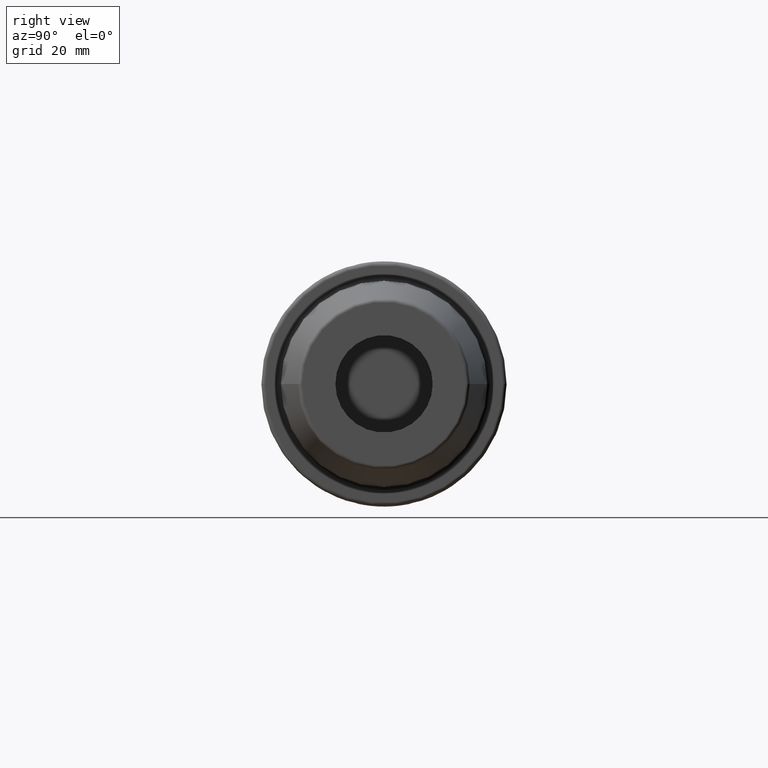
[diagram: clean part render]
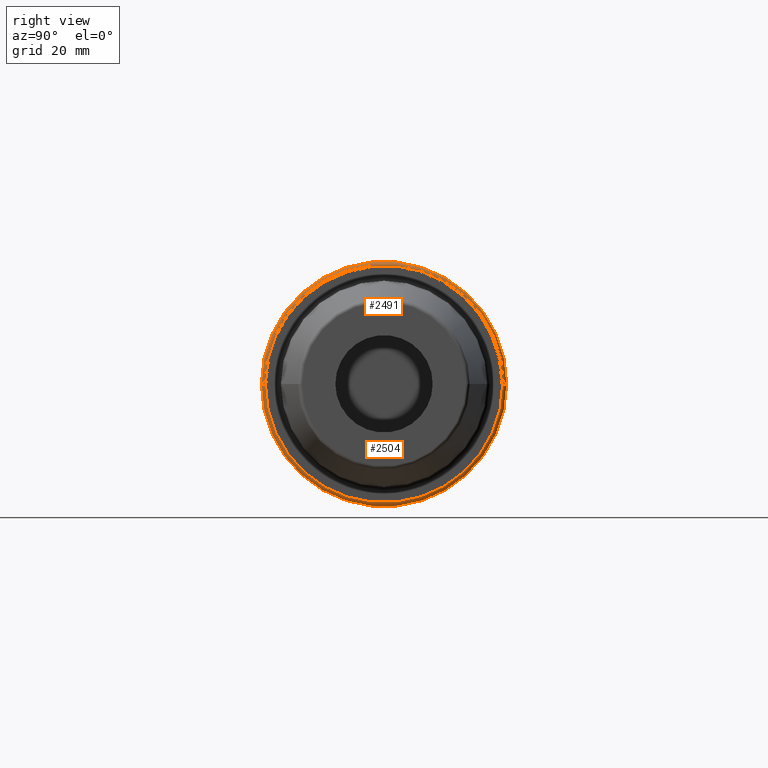
[diagram: same view with one multi-face feature highlighted, each face labeled with its STEP entity id]
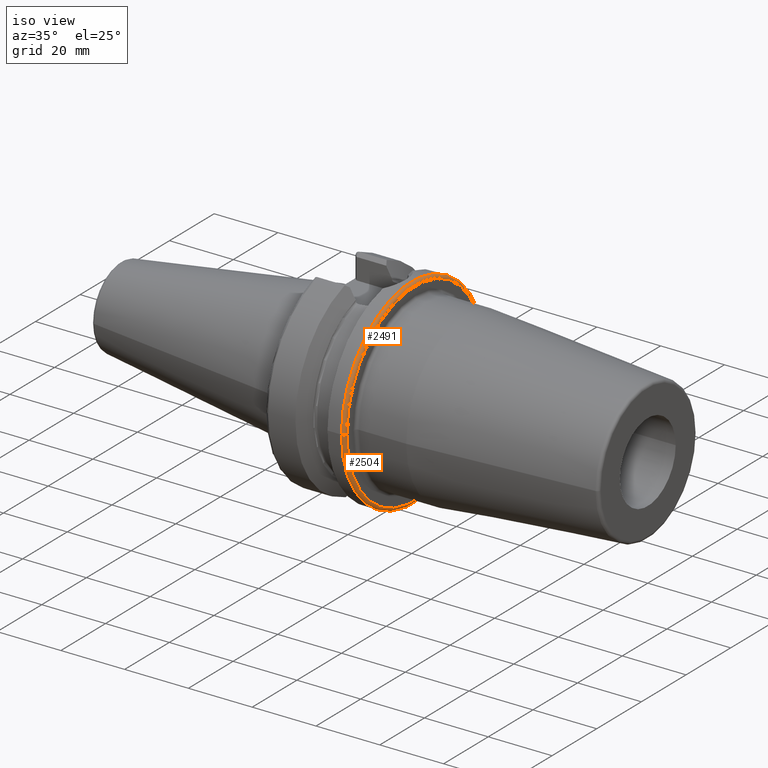
[diagram: same view with one multi-face feature highlighted, each face labeled with its STEP entity id]
A machine part, right view. The highlighted faces form ONE feature: a constant-radius fillet chain: 2 tangent blend faces with common blend radius 1 mm. The faces share edges in the B-rep.
A second angle (iso view) of the same feature is appended — it is thin or edge-on in the first view.
Their STEP definitions:
[1] entity #2504 (Torus):
#255=CARTESIAN_POINT('',(2.6E1,0.E0,0.E0));
#256=DIRECTION('',(-1.E0,0.E0,0.E0));
#257=DIRECTION('',(0.E0,1.E0,0.E0));
#258=AXIS2_PLACEMENT_3D('',#255,#256,#257);
#821=CARTESIAN_POINT('',(2.6E1,3.04875E1,0.E0));
#822=DIRECTION('',(0.E0,0.E0,1.E0));
#823=DIRECTION('',(1.E0,0.E0,0.E0));
#824=AXIS2_PLACEMENT_3D('',#821,#822,#823);
#826=CARTESIAN_POINT('',(2.6E1,-3.04875E1,0.E0));
#827=DIRECTION('',(0.E0,0.E0,-1.E0));
#828=DIRECTION('',(1.E0,0.E0,0.E0));
#829=AXIS2_PLACEMENT_3D('',#826,#827,#828);
#831=CARTESIAN_POINT('',(2.7E1,0.E0,0.E0));
#832=DIRECTION('',(-1.E0,0.E0,0.E0));
#833=DIRECTION('',(0.E0,1.E0,0.E0));
#834=AXIS2_PLACEMENT_3D('',#831,#832,#833);
#1234=CARTESIAN_POINT('',(2.6E1,3.14875E1,0.E0));
#1235=VERTEX_POINT('',#1234);
#1236=CARTESIAN_POINT('',(2.6E1,-3.14875E1,0.E0));
#1237=VERTEX_POINT('',#1236);
#1304=CARTESIAN_POINT('',(2.7E1,3.04875E1,0.E0));
#1305=VERTEX_POINT('',#1304);
#1306=CARTESIAN_POINT('',(2.7E1,-3.04875E1,0.E0));
#1307=VERTEX_POINT('',#1306);
#2492=CARTESIAN_POINT('',(2.6E1,0.E0,0.E0));
#2493=DIRECTION('',(1.E0,0.E0,0.E0));
#2494=DIRECTION('',(0.E0,-1.E0,0.E0));
#2495=AXIS2_PLACEMENT_3D('',#2492,#2493,#2494);
#2496=TOROIDAL_SURFACE('',#2495,3.04875E1,1.E0);
#2497=ORIENTED_EDGE('',*,*,#2482,.T.);
#2498=ORIENTED_EDGE('',*,*,#1759,.T.);
#2499=ORIENTED_EDGE('',*,*,#2486,.F.);
#2501=ORIENTED_EDGE('',*,*,#2500,.F.);
#2502=EDGE_LOOP('',(#2497,#2498,#2499,#2501));
#2503=FACE_OUTER_BOUND('',#2502,.F.);
#2504=ADVANCED_FACE('',(#2503),#2496,.T.);
#259=CIRCLE('',#258,3.14875E1);
#825=CIRCLE('',#824,1.E0);
#830=CIRCLE('',#829,1.E0);
#835=CIRCLE('',#834,3.04875E1);
#1759=EDGE_CURVE('',#1235,#1237,#259,.T.);
#2482=EDGE_CURVE('',#1305,#1235,#825,.T.);
#2486=EDGE_CURVE('',#1307,#1237,#830,.T.);
#2500=EDGE_CURVE('',#1305,#1307,#835,.T.);
[2] entity #2491 (Torus):
#792=CARTESIAN_POINT('',(2.6E1,0.E0,0.E0));
#793=DIRECTION('',(1.E0,0.E0,0.E0));
#794=DIRECTION('',(0.E0,1.E0,0.E0));
#795=AXIS2_PLACEMENT_3D('',#792,#793,#794);
#816=CARTESIAN_POINT('',(2.7E1,0.E0,0.E0));
#817=DIRECTION('',(1.E0,0.E0,0.E0));
#818=DIRECTION('',(0.E0,1.E0,0.E0));
#819=AXIS2_PLACEMENT_3D('',#816,#817,#818);
#821=CARTESIAN_POINT('',(2.6E1,3.04875E1,0.E0));
#822=DIRECTION('',(0.E0,0.E0,1.E0));
#823=DIRECTION('',(1.E0,0.E0,0.E0));
#824=AXIS2_PLACEMENT_3D('',#821,#822,#823);
#826=CARTESIAN_POINT('',(2.6E1,-3.04875E1,0.E0));
#827=DIRECTION('',(0.E0,0.E0,-1.E0));
#828=DIRECTION('',(1.E0,0.E0,0.E0));
#829=AXIS2_PLACEMENT_3D('',#826,#827,#828);
#1234=CARTESIAN_POINT('',(2.6E1,3.14875E1,0.E0));
#1235=VERTEX_POINT('',#1234);
#1236=CARTESIAN_POINT('',(2.6E1,-3.14875E1,0.E0));
#1237=VERTEX_POINT('',#1236);
#1304=CARTESIAN_POINT('',(2.7E1,3.04875E1,0.E0));
#1305=VERTEX_POINT('',#1304);
#1306=CARTESIAN_POINT('',(2.7E1,-3.04875E1,0.E0));
#1307=VERTEX_POINT('',#1306);
#2477=CARTESIAN_POINT('',(2.6E1,0.E0,0.E0));
#2478=DIRECTION('',(1.E0,0.E0,0.E0));
#2479=DIRECTION('',(0.E0,-1.E0,0.E0));
#2480=AXIS2_PLACEMENT_3D('',#2477,#2478,#2479);
#2481=TOROIDAL_SURFACE('',#2480,3.04875E1,1.E0);
#2483=ORIENTED_EDGE('',*,*,#2482,.F.);
#2485=ORIENTED_EDGE('',*,*,#2484,.T.);
#2487=ORIENTED_EDGE('',*,*,#2486,.T.);
#2488=ORIENTED_EDGE('',*,*,#2468,.F.);
#2489=EDGE_LOOP('',(#2483,#2485,#2487,#2488));
#2490=FACE_OUTER_BOUND('',#2489,.F.);
#2491=ADVANCED_FACE('',(#2490),#2481,.T.);
#796=CIRCLE('',#795,3.14875E1);
#820=CIRCLE('',#819,3.04875E1);
#825=CIRCLE('',#824,1.E0);
#830=CIRCLE('',#829,1.E0);
#2468=EDGE_CURVE('',#1235,#1237,#796,.T.);
#2482=EDGE_CURVE('',#1305,#1235,#825,.T.);
#2484=EDGE_CURVE('',#1305,#1307,#820,.T.);
#2486=EDGE_CURVE('',#1307,#1237,#830,.T.);